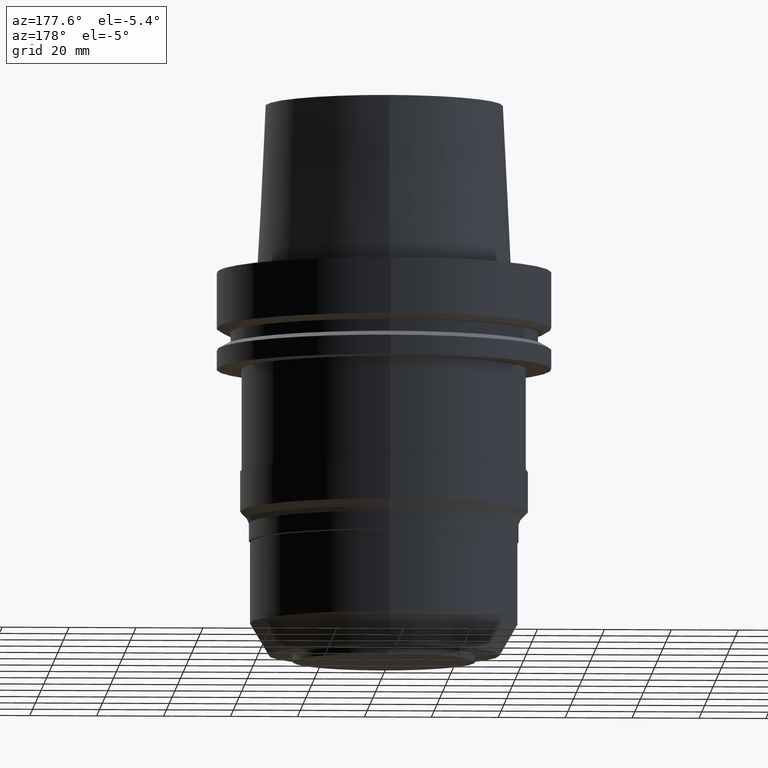
[diagram: clean part render]
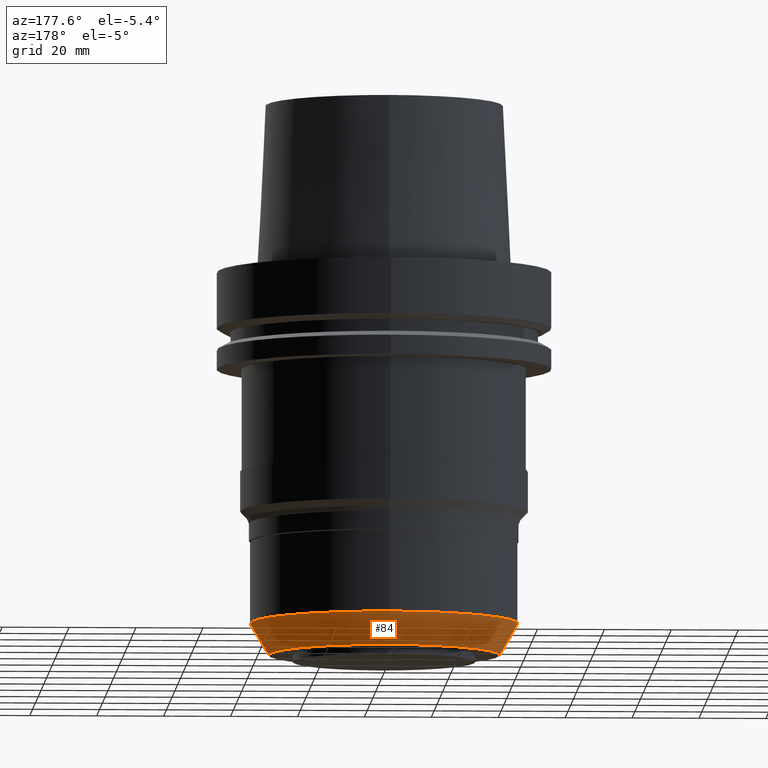
[diagram: same view with one face highlighted and labeled with its STEP entity id]
A machine part, auxiliary view. The second image highlights one B-rep face of the part: STEP entity #84.
In plain terms, the highlighted conical surface has half-angle 30 deg.
Its self-contained STEP definition (entity closure, byte-faithful):
#84=ADVANCED_FACE('Unnamed[1]',(#224,#225),#226,.T.);
#143=EDGE_CURVE('Unnamed[1]',#319,#319,#320,.T.);
#179=EDGE_CURVE('Unnamed[1]',#375,#375,#376,.T.);
#224=FACE_BOUND('',#418,.T.);
#225=FACE_BOUND('',#419,.T.);
#226=CONICAL_SURFACE('',#420,37.2575822913694,0.523598775598427);
#319=VERTEX_POINT('',#536);
#320=CIRCLE('',#537,34.5151645827388);
#375=VERTEX_POINT('',#607);
#376=CIRCLE('',#608,40.0000000000001);
#418=EDGE_LOOP('',(#642));
#419=EDGE_LOOP('',(#643));
#420=AXIS2_PLACEMENT_3D('',#644,#645,#646);
#536=CARTESIAN_POINT('',(7.02334939311008E-015,34.5151645827388,-114.7));
#537=AXIS2_PLACEMENT_3D('',#751,#752,#753);
#607=CARTESIAN_POINT('',(6.44164132990738E-015,40.0000000000001,-105.199986386153));
#608=AXIS2_PLACEMENT_3D('',#813,#814,#815);
#642=ORIENTED_EDGE('',*,*,#143,.F.);
#643=ORIENTED_EDGE('',*,*,#179,.T.);
#644=CARTESIAN_POINT('',(6.73249536150873E-015,1.34649907230175E-014,-109.949993193077));
#645=DIRECTION('',(-6.12323399573677E-017,-1.22464679914739E-016,1.0));
#646=DIRECTION('',(-1.23259516440765E-032,1.0,1.22464679914739E-016));
#751=CARTESIAN_POINT('',(7.02334939311008E-015,1.40466987862202E-014,-114.7));
#752=DIRECTION('',(6.12323399573677E-017,1.22464679914761E-016,-1.0));
#753=DIRECTION('',(-1.23259516440797E-032,1.0,1.22464679914761E-016));
#813=CARTESIAN_POINT('',(6.44164132990738E-015,1.28832826598148E-014,-105.199986386153));
#814=DIRECTION('',(6.12323399573677E-017,1.2246467991472E-016,-1.0));
#815=DIRECTION('',(-1.23259516440783E-032,1.0,1.2246467991472E-016));